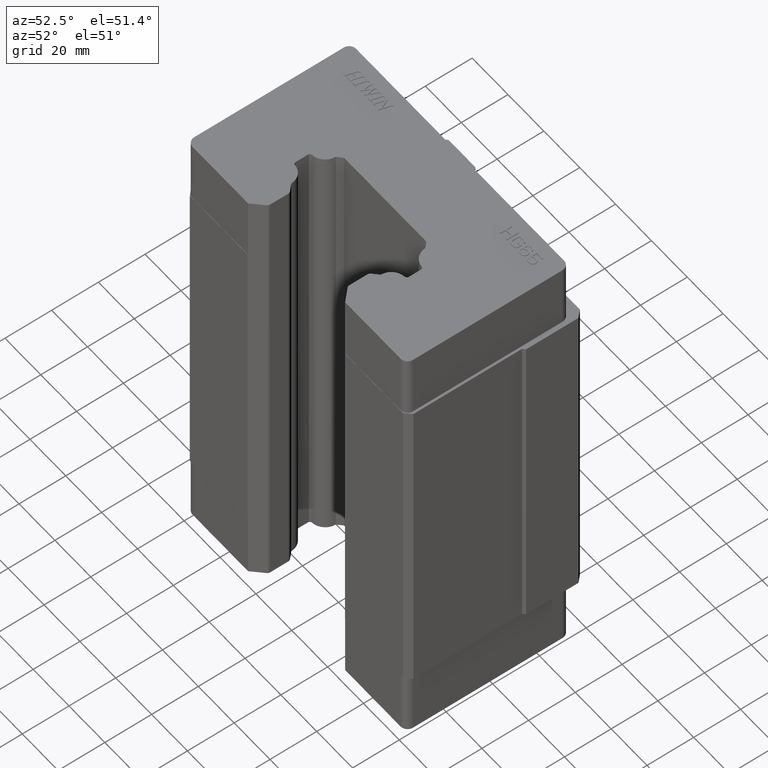
[diagram: clean part render]
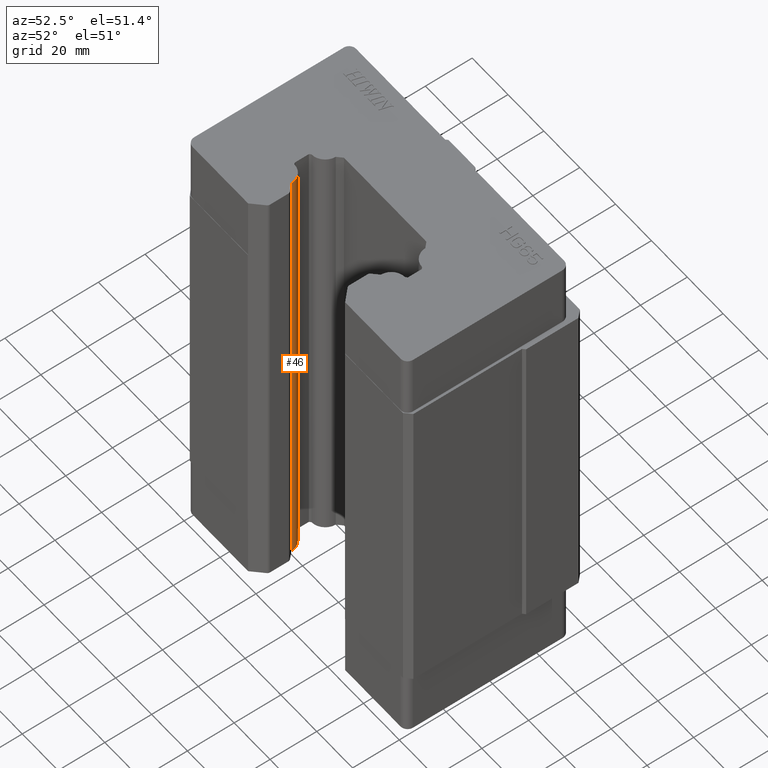
[diagram: same view with one face highlighted and labeled with its STEP entity id]
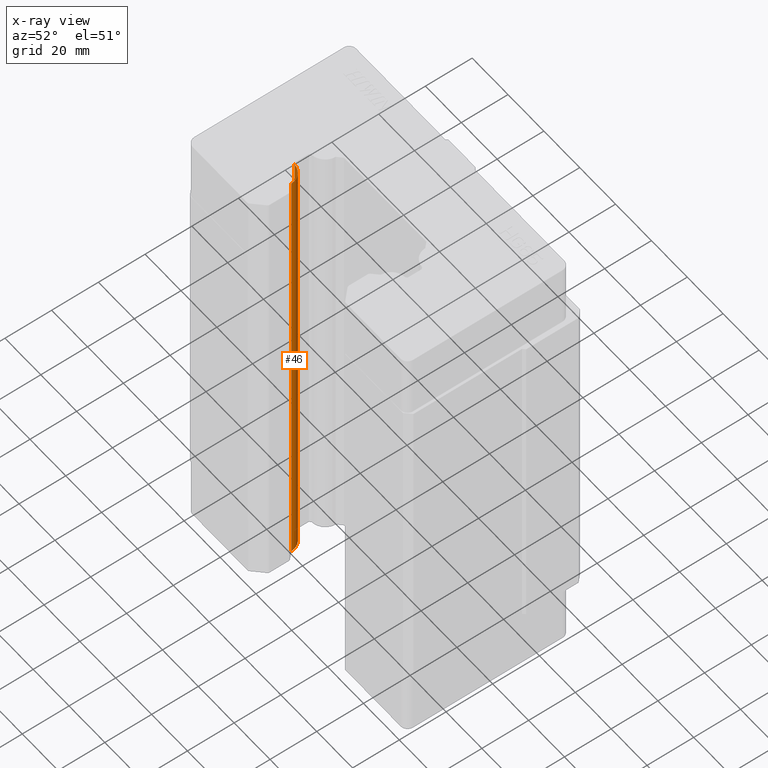
[diagram: x-ray of the same camera — body ghosted, the highlighted face saturated]
A machine part, auxiliary view. The second image highlights one B-rep face of the part: STEP entity #46.
The next image is the same camera in x-ray: the body ghosted, the highlighted face saturated — about 0% of this face is hidden behind the body in this view.
In plain terms, the highlighted cylindrical surface (edge-blend (fillet) strip) has radius 6 mm, axis along (0, 0, 1).
Its self-contained STEP definition (entity closure, byte-faithful):
#29 = ORIENTED_EDGE ( 'NONE', *, *, #43, .T. ) ;
#30 = ORIENTED_EDGE ( 'NONE', *, *, #1502, .T. ) ;
#34 = EDGE_LOOP ( 'NONE', ( #29, #30, #71, #515 ) ) ;
#43 = EDGE_CURVE ( 'NONE', #471, #992, #3941, .T. ) ;
#46 = ADVANCED_FACE ( 'NONE', ( #3936 ), #3935, .T. ) ;
#71 = ORIENTED_EDGE ( 'NONE', *, *, #516, .F. ) ;
#465 = VERTEX_POINT ( 'NONE', #4654 ) ;
#471 = VERTEX_POINT ( 'NONE', #4653 ) ;
#472 = EDGE_CURVE ( 'NONE', #465, #471, #4652, .T. ) ;
#515 = ORIENTED_EDGE ( 'NONE', *, *, #472, .T. ) ;
#516 = EDGE_CURVE ( 'NONE', #465, #904, #4757, .T. ) ;
#904 = VERTEX_POINT ( 'NONE', #5437 ) ;
#992 = VERTEX_POINT ( 'NONE', #5540 ) ;
#1502 = EDGE_CURVE ( 'NONE', #992, #904, #6386, .T. ) ;
#3931 = DIRECTION ( 'NONE',  ( 1.000000000000000000, 0.0000000000000000000, 0.0000000000000000000 ) ) ;
#3932 = DIRECTION ( 'NONE',  ( 0.0000000000000000000, 0.0000000000000000000, 1.000000000000000000 ) ) ;
#3933 = CARTESIAN_POINT ( 'NONE',  ( -30.99002214876000500, -21.12303314876000100, -72.09999999999999400 ) ) ;
#3934 = AXIS2_PLACEMENT_3D ( 'NONE', #3933, #3932, #3931 ) ;
#3935 = CYLINDRICAL_SURFACE ( 'NONE', #3934, 5.999999999999998200 ) ;
#3936 = FACE_OUTER_BOUND ( 'NONE', #34, .T. ) ;
#3937 = DIRECTION ( 'NONE',  ( 1.000000000000000000, 0.0000000000000000000, 0.0000000000000000000 ) ) ;
#3938 = DIRECTION ( 'NONE',  ( 0.0000000000000000000, 0.0000000000000000000, 1.000000000000000000 ) ) ;
#3939 = CARTESIAN_POINT ( 'NONE',  ( -30.99002214876000500, -21.12303314876000100, -100.0999999999999900 ) ) ;
#3940 = AXIS2_PLACEMENT_3D ( 'NONE', #3939, #3938, #3937 ) ;
#3941 = CIRCLE ( 'NONE', #3940, 5.999999999999998200 ) ;
#4649 = DIRECTION ( 'NONE',  ( 0.0000000000000000000, 0.0000000000000000000, -1.000000000000000000 ) ) ;
#4650 = VECTOR ( 'NONE', #4649, 1000.000000000000000 ) ;
#4651 = CARTESIAN_POINT ( 'NONE',  ( -24.99110789035031700, -21.00889410965000800, -72.09999999999999400 ) ) ;
#4652 = LINE ( 'NONE', #4651, #4650 ) ;
#4653 = CARTESIAN_POINT ( 'NONE',  ( -24.99110789035032100, -21.00889410964984400, -100.0999999999999900 ) ) ;
#4654 = CARTESIAN_POINT ( 'NONE',  ( -24.99110789035032100, -21.00889410964984400, 100.0999999999999900 ) ) ;
#4753 = DIRECTION ( 'NONE',  ( 1.000000000000000000, 0.0000000000000000000, 0.0000000000000000000 ) ) ;
#4754 = DIRECTION ( 'NONE',  ( 0.0000000000000000000, 0.0000000000000000000, 1.000000000000000000 ) ) ;
#4755 = CARTESIAN_POINT ( 'NONE',  ( -30.99002214876000500, -21.12303314876000100, 100.0999999999999900 ) ) ;
#4756 = AXIS2_PLACEMENT_3D ( 'NONE', #4755, #4754, #4753 ) ;
#4757 = CIRCLE ( 'NONE', #4756, 5.999999999999998200 ) ;
#5437 = CARTESIAN_POINT ( 'NONE',  ( -30.87588310964984500, -15.12411889035031700, 100.0999999999999900 ) ) ;
#5540 = CARTESIAN_POINT ( 'NONE',  ( -30.87588310964984500, -15.12411889035031700, -100.0999999999999900 ) ) ;
#6383 = DIRECTION ( 'NONE',  ( 0.0000000000000000000, 0.0000000000000000000, 1.000000000000000000 ) ) ;
#6384 = VECTOR ( 'NONE', #6383, 1000.000000000000000 ) ;
#6385 = CARTESIAN_POINT ( 'NONE',  ( -30.87588310965000800, -15.12411889035031400, -72.09999999999999400 ) ) ;
#6386 = LINE ( 'NONE', #6385, #6384 ) ;